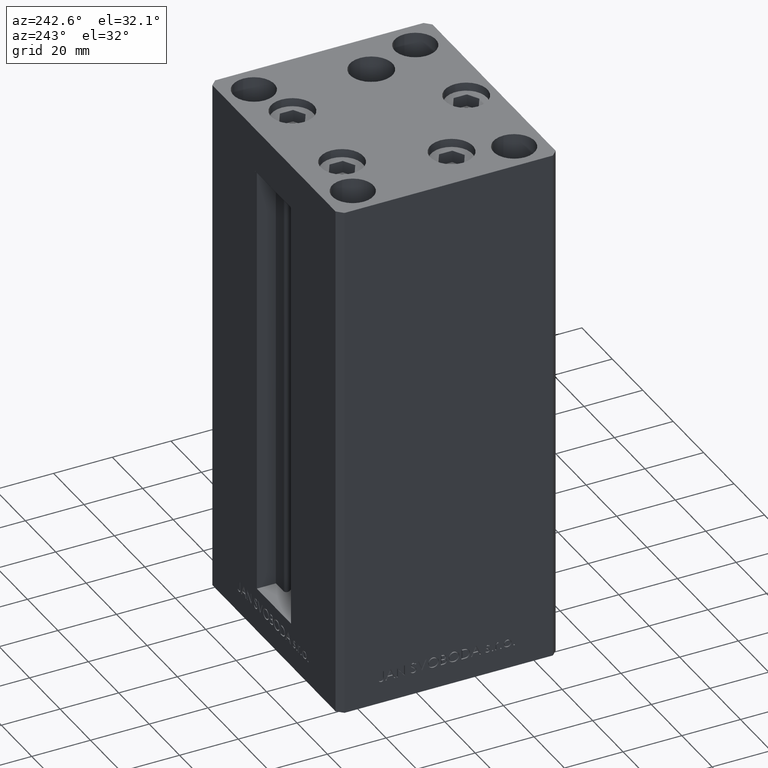
[diagram: clean part render]
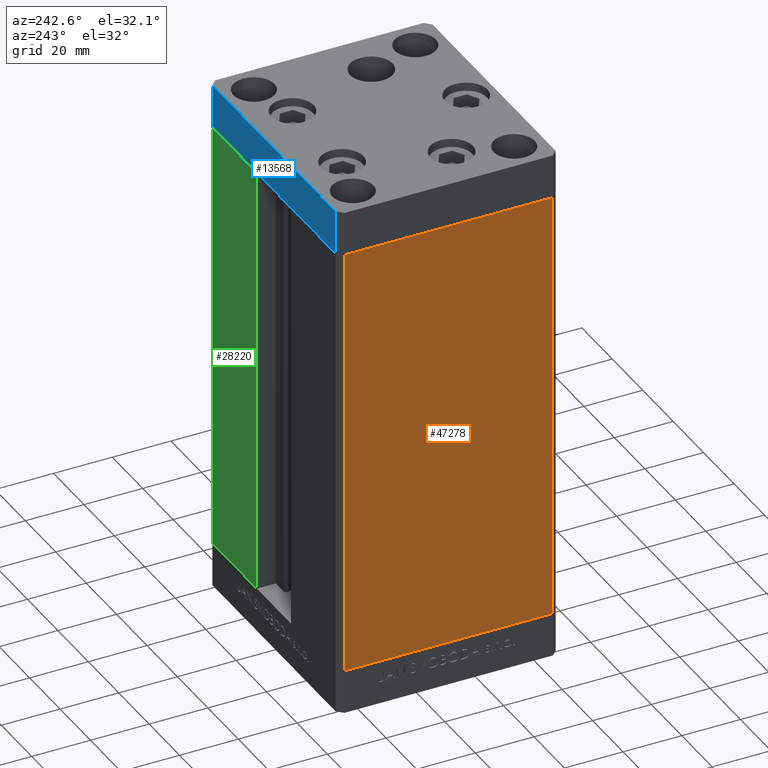
[diagram: same view with three faces highlighted in distinct colors, each labeled with its STEP entity id]
A machine part, auxiliary view with three faces highlighted in distinct colors.
Their STEP definitions:

[orange] entity #47278 — the highlighted planar face has unit normal (1, 0, 0).
#501 = LINE ( 'NONE', #30695, #21210 ) ;
#3434 = DIRECTION ( 'NONE',  ( 2.931927001650941360E-16, -1.000000000000000000, 0.000000000000000000 ) ) ;
#5594 = ORIENTED_EDGE ( 'NONE', *, *, #10164, .F. ) ;
#5616 = EDGE_CURVE ( 'NONE', #5986, #32951, #14320, .T. ) ;
#5986 = VERTEX_POINT ( 'NONE', #27831 ) ;
#10107 = VERTEX_POINT ( 'NONE', #25412 ) ;
#10164 = EDGE_CURVE ( 'NONE', #32951, #23134, #21940, .T. ) ;
#11563 = ORIENTED_EDGE ( 'NONE', *, *, #31737, .T. ) ;
#13064 = VECTOR ( 'NONE', #18234, 1000.000000000000000 ) ;
#14320 = LINE ( 'NONE', #22722, #18436 ) ;
#14510 = CARTESIAN_POINT ( 'NONE',  ( -42.49999999999998579, -35.50000000000000711, 148.5000000000000000 ) ) ;
#14954 = PLANE ( 'NONE',  #28816 ) ;
#16651 = DIRECTION ( 'NONE',  ( 2.931927001650941360E-16, -1.000000000000000000, 0.000000000000000000 ) ) ;
#18234 = DIRECTION ( 'NONE',  ( -0.000000000000000000, -0.000000000000000000, -1.000000000000000000 ) ) ;
#18436 = VECTOR ( 'NONE', #3434, 1000.000000000000000 ) ;
#19905 = CARTESIAN_POINT ( 'NONE',  ( -42.49999999999998579, -35.50000000000000711, 0.000000000000000000 ) ) ;
#21210 = VECTOR ( 'NONE', #45770, 1000.000000000000000 ) ;
#21320 = VECTOR ( 'NONE', #16651, 1000.000000000000000 ) ;
#21940 = LINE ( 'NONE', #14510, #13064 ) ;
#22722 = CARTESIAN_POINT ( 'NONE',  ( -42.50000000000000711, 35.50000000000001421, 148.5000000000000000 ) ) ;
#23134 = VERTEX_POINT ( 'NONE', #19905 ) ;
#25412 = CARTESIAN_POINT ( 'NONE',  ( -42.50000000000000711, 35.50000000000001421, 0.000000000000000000 ) ) ;
#26106 = CARTESIAN_POINT ( 'NONE',  ( -42.50000000000000711, 35.50000000000001421, 148.5000000000000000 ) ) ;
#27831 = CARTESIAN_POINT ( 'NONE',  ( -42.50000000000000711, 35.50000000000001421, 148.5000000000000000 ) ) ;
#28285 = LINE ( 'NONE', #35447, #21320 ) ;
#28651 = CARTESIAN_POINT ( 'NONE',  ( -42.49999999999998579, -35.50000000000000711, 148.5000000000000000 ) ) ;
#28688 = EDGE_CURVE ( 'NONE', #5986, #10107, #501, .T. ) ;
#28816 = AXIS2_PLACEMENT_3D ( 'NONE', #26106, #30310, #44673 ) ;
#29599 = EDGE_LOOP ( 'NONE', ( #11563, #5594, #35319, #35940 ) ) ;
#30310 = DIRECTION ( 'NONE',  ( 1.000000000000000000, 2.931927001650941360E-16, -0.000000000000000000 ) ) ;
#30695 = CARTESIAN_POINT ( 'NONE',  ( -42.50000000000000711, 35.50000000000001421, 148.5000000000000000 ) ) ;
#31737 = EDGE_CURVE ( 'NONE', #10107, #23134, #28285, .T. ) ;
#32951 = VERTEX_POINT ( 'NONE', #28651 ) ;
#33526 = FACE_OUTER_BOUND ( 'NONE', #29599, .T. ) ;
#35319 = ORIENTED_EDGE ( 'NONE', *, *, #5616, .F. ) ;
#35447 = CARTESIAN_POINT ( 'NONE',  ( -42.50000000000000711, 35.50000000000001421, 0.000000000000000000 ) ) ;
#35940 = ORIENTED_EDGE ( 'NONE', *, *, #28688, .T. ) ;
#44673 = DIRECTION ( 'NONE',  ( -2.931927001650941360E-16, 1.000000000000000000, 0.000000000000000000 ) ) ;
#45770 = DIRECTION ( 'NONE',  ( -0.000000000000000000, -0.000000000000000000, -1.000000000000000000 ) ) ;
#47278 = ADVANCED_FACE ( 'NONE', ( #33526 ), #14954, .F. ) ;

[blue] entity #13568 — the highlighted planar face has unit normal (-0, 1, 0).
#2562 = DIRECTION ( 'NONE',  ( -1.000000000000000000, -3.426614273534436165E-16, 0.000000000000000000 ) ) ;
#3606 = ORIENTED_EDGE ( 'NONE', *, *, #42671, .F. ) ;
#3725 = VERTEX_POINT ( 'NONE', #44838 ) ;
#4574 = EDGE_CURVE ( 'NONE', #20340, #7937, #11666, .T. ) ;
#7937 = VERTEX_POINT ( 'NONE', #46981 ) ;
#8100 = VECTOR ( 'NONE', #29035, 1000.000000000000000 ) ;
#9496 = DIRECTION ( 'NONE',  ( -1.000000000000000000, -3.426614273534436165E-16, 0.000000000000000000 ) ) ;
#11666 = LINE ( 'NONE', #41626, #12841 ) ;
#12718 = LINE ( 'NONE', #12963, #15028 ) ;
#12841 = VECTOR ( 'NONE', #15626, 1000.000000000000000 ) ;
#12963 = CARTESIAN_POINT ( 'NONE',  ( 40.49999999999991473, 37.50000000000000711, -15.00000000000000000 ) ) ;
#13568 = ADVANCED_FACE ( 'NONE', ( #13690 ), #25077, .T. ) ;
#13674 = CARTESIAN_POINT ( 'NONE',  ( 40.49999999999991473, 37.50000000000000711, -15.00000000000000000 ) ) ;
#13690 = FACE_OUTER_BOUND ( 'NONE', #20624, .T. ) ;
#14667 = CARTESIAN_POINT ( 'NONE',  ( 40.49999999999991473, 37.50000000000000711, 0.000000000000000000 ) ) ;
#15028 = VECTOR ( 'NONE', #9496, 1000.000000000000000 ) ;
#15626 = DIRECTION ( 'NONE',  ( -1.000000000000000000, -3.426614273534436165E-16, 0.000000000000000000 ) ) ;
#17174 = ORIENTED_EDGE ( 'NONE', *, *, #37424, .T. ) ;
#18266 = EDGE_CURVE ( 'NONE', #43158, #7937, #30556, .T. ) ;
#20340 = VERTEX_POINT ( 'NONE', #14667 ) ;
#20623 = CARTESIAN_POINT ( 'NONE',  ( 40.49999999999991473, 37.50000000000000711, -15.00000000000000000 ) ) ;
#20624 = EDGE_LOOP ( 'NONE', ( #24034, #3606, #17174, #34447 ) ) ;
#24034 = ORIENTED_EDGE ( 'NONE', *, *, #4574, .F. ) ;
#25077 = PLANE ( 'NONE',  #40690 ) ;
#29035 = DIRECTION ( 'NONE',  ( 0.000000000000000000, 0.000000000000000000, 1.000000000000000000 ) ) ;
#30556 = LINE ( 'NONE', #31521, #33724 ) ;
#31521 = CARTESIAN_POINT ( 'NONE',  ( -40.50000000000000711, 37.49999999999997868, -15.00000000000000000 ) ) ;
#32658 = CARTESIAN_POINT ( 'NONE',  ( -40.50000000000000711, 37.49999999999997868, -15.00000000000000000 ) ) ;
#33724 = VECTOR ( 'NONE', #46599, 1000.000000000000000 ) ;
#34447 = ORIENTED_EDGE ( 'NONE', *, *, #18266, .T. ) ;
#35972 = DIRECTION ( 'NONE',  ( -3.426614273534436165E-16, 1.000000000000000000, 0.000000000000000000 ) ) ;
#37424 = EDGE_CURVE ( 'NONE', #3725, #43158, #12718, .T. ) ;
#40690 = AXIS2_PLACEMENT_3D ( 'NONE', #20623, #35972, #2562 ) ;
#41626 = CARTESIAN_POINT ( 'NONE',  ( 40.49999999999991473, 37.50000000000000711, 0.000000000000000000 ) ) ;
#42671 = EDGE_CURVE ( 'NONE', #3725, #20340, #43620, .T. ) ;
#43158 = VERTEX_POINT ( 'NONE', #32658 ) ;
#43620 = LINE ( 'NONE', #13674, #8100 ) ;
#44838 = CARTESIAN_POINT ( 'NONE',  ( 40.49999999999991473, 37.50000000000000711, -15.00000000000000000 ) ) ;
#46599 = DIRECTION ( 'NONE',  ( 0.000000000000000000, 0.000000000000000000, 1.000000000000000000 ) ) ;
#46981 = CARTESIAN_POINT ( 'NONE',  ( -40.50000000000000711, 37.49999999999997868, 0.000000000000000000 ) ) ;

[green] entity #28220 — the highlighted planar face has unit normal (-0, -1, 0).
#1770 = LINE ( 'NONE', #4518, #10598 ) ;
#4518 = CARTESIAN_POINT ( 'NONE',  ( 11.25000000000000000, 37.50000000000000000, 0.000000000000000000 ) ) ;
#4648 = AXIS2_PLACEMENT_3D ( 'NONE', #9553, #38768, #31836 ) ;
#5894 = DIRECTION ( 'NONE',  ( -1.000000000000000000, 2.372271420139223331E-16, 0.000000000000000000 ) ) ;
#6858 = LINE ( 'NONE', #21459, #31155 ) ;
#8490 = EDGE_CURVE ( 'NONE', #20396, #24937, #1770, .T. ) ;
#8575 = FACE_OUTER_BOUND ( 'NONE', #26413, .T. ) ;
#9553 = CARTESIAN_POINT ( 'NONE',  ( -11.25000000000000000, 37.50000000000000000, 148.5000000000000000 ) ) ;
#10598 = VECTOR ( 'NONE', #43341, 1000.000000000000000 ) ;
#11367 = EDGE_CURVE ( 'NONE', #35548, #22837, #6858, .T. ) ;
#12804 = CARTESIAN_POINT ( 'NONE',  ( 11.24999999999999289, 37.50000000000000000, 148.5000000000000000 ) ) ;
#17524 = CARTESIAN_POINT ( 'NONE',  ( -11.25000000000000000, 37.50000000000000000, 0.000000000000000000 ) ) ;
#18479 = DIRECTION ( 'NONE',  ( -0.000000000000000000, -0.000000000000000000, -1.000000000000000000 ) ) ;
#20396 = VERTEX_POINT ( 'NONE', #24518 ) ;
#20690 = PLANE ( 'NONE',  #4648 ) ;
#21459 = CARTESIAN_POINT ( 'NONE',  ( 40.50000000000000000, 37.50000000000000711, 148.5000000000000000 ) ) ;
#22456 = ORIENTED_EDGE ( 'NONE', *, *, #30412, .T. ) ;
#22837 = VERTEX_POINT ( 'NONE', #36108 ) ;
#22905 = VECTOR ( 'NONE', #5894, 1000.000000000000000 ) ;
#24297 = LINE ( 'NONE', #40378, #27567 ) ;
#24518 = CARTESIAN_POINT ( 'NONE',  ( 11.25000000000000000, 37.50000000000000000, 0.000000000000000000 ) ) ;
#24937 = VERTEX_POINT ( 'NONE', #12804 ) ;
#26413 = EDGE_LOOP ( 'NONE', ( #30633, #38116, #22456, #46847 ) ) ;
#27567 = VECTOR ( 'NONE', #43602, 1000.000000000000000 ) ;
#28220 = ADVANCED_FACE ( 'NONE', ( #8575 ), #20690, .F. ) ;
#30412 = EDGE_CURVE ( 'NONE', #24937, #35548, #24297, .T. ) ;
#30633 = ORIENTED_EDGE ( 'NONE', *, *, #32063, .T. ) ;
#31155 = VECTOR ( 'NONE', #18479, 1000.000000000000000 ) ;
#31836 = DIRECTION ( 'NONE',  ( 1.000000000000000000, -2.372271420139223331E-16, 0.000000000000000000 ) ) ;
#32063 = EDGE_CURVE ( 'NONE', #22837, #20396, #35830, .T. ) ;
#35548 = VERTEX_POINT ( 'NONE', #41316 ) ;
#35830 = LINE ( 'NONE', #17524, #22905 ) ;
#36108 = CARTESIAN_POINT ( 'NONE',  ( 40.50000000000000000, 37.50000000000000711, 0.000000000000000000 ) ) ;
#38116 = ORIENTED_EDGE ( 'NONE', *, *, #8490, .T. ) ;
#38768 = DIRECTION ( 'NONE',  ( -2.372271420139223331E-16, -1.000000000000000000, 0.000000000000000000 ) ) ;
#40378 = CARTESIAN_POINT ( 'NONE',  ( -11.25000000000000000, 37.50000000000000000, 148.5000000000000000 ) ) ;
#41316 = CARTESIAN_POINT ( 'NONE',  ( 40.50000000000000000, 37.50000000000000711, 148.5000000000000000 ) ) ;
#43341 = DIRECTION ( 'NONE',  ( -0.000000000000000000, -0.000000000000000000, 1.000000000000000000 ) ) ;
#43602 = DIRECTION ( 'NONE',  ( 1.000000000000000000, 0.000000000000000000, 0.000000000000000000 ) ) ;
#46847 = ORIENTED_EDGE ( 'NONE', *, *, #11367, .T. ) ;